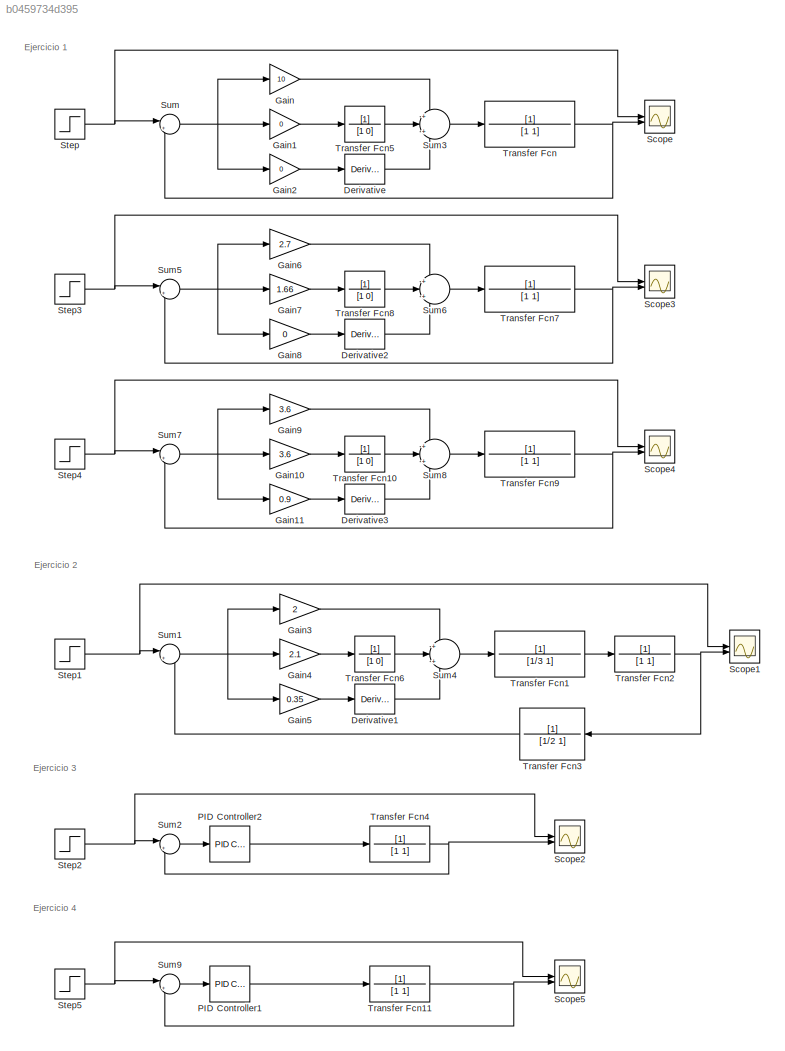
MODEL slx_b0459734d395
KIND model
CONFIG AbsTol = auto
CONFIG EnableMultiTasking = off
CONFIG FixedStep = auto
CONFIG MaxStep = auto
CONFIG MinStep = auto
CONFIG RelTol = 1e-3
CONFIG SampleTimeConstraint = Unconstrained
CONFIG SolverName = VariableStepAuto
CONFIG StartTime = 0.0
CONFIG StopTime = 10
BLOCK [Derivative] Derivative
BLOCK [Derivative] Derivative1
BLOCK [Derivative] Derivative2
BLOCK [Derivative] Derivative3
BLOCK [Gain] Gain
  Gain = 10
BLOCK [Gain] Gain1
  Gain = 0
BLOCK [Gain] Gain10
  Gain = 3.6
BLOCK [Gain] Gain11
  Gain = 0.9
BLOCK [Gain] Gain2
  Gain = 0
BLOCK [Gain] Gain3
  Gain = 2
BLOCK [Gain] Gain4
  Gain = 2.1
BLOCK [Gain] Gain5
  Gain = 0.35
BLOCK [Gain] Gain6
  Gain = 2.7
BLOCK [Gain] Gain7
  Gain = 1.66
BLOCK [Gain] Gain8
  Gain = 0
BLOCK [Gain] Gain9
  Gain = 3.6
BLOCK [Reference] PID Controller1  REF=slpidlib/PID Controller
  LibrarySourceBlock = simulink/Continuous/PID Controller
  SourceBlock = slpidlib/PID Controller
  SourceType = PID 1dof
BLOCK [Reference] PID Controller2  REF=slpidlib/PID Controller
  LibrarySourceBlock = simulink/Continuous/PID Controller
  SourceBlock = slpidlib/PID Controller
  SourceType = PID 1dof
BLOCK [Scope] Scope
  Floating = off
  NumInputPorts = 2
  ScopeSpecificationString = Simulink.scopes.TimeScopeBlockCfg('CurrentConfiguration', extmgr.ConfigurationSet(extmgr.Configuration('Core','General UI',true),extmgr.Configuration('Core','Source UI',true),extmgr.Configuration('Sources','WiredSimulink',true),extmgr.Configuration('Visuals','Time Domain',true,'SerializedDisplays',{struct('MinYLimReal','-0.15565','MaxYLimReal','1.40089','YLabelReal','','MinYLimMag','0.00000','MaxY...<+1461ch>
BLOCK [Scope] Scope1
  Floating = off
  NumInputPorts = 2
  ScopeSpecificationString = Simulink.scopes.TimeScopeBlockCfg('CurrentConfiguration', extmgr.ConfigurationSet(extmgr.Configuration('Core','General UI',true),extmgr.Configuration('Core','Source UI',true),extmgr.Configuration('Sources','WiredSimulink',true,'DataLoggingVariableName','ScopeData1'),extmgr.Configuration('Visuals','Time Domain',true,'SerializedDisplays',{struct('MinYLimReal','-0.18835','MaxYLimReal','1.69515','YLab...<+1504ch>
BLOCK [Scope] Scope2
  Floating = off
  NumInputPorts = 2
  ScopeSpecificationString = Simulink.scopes.TimeScopeBlockCfg('CurrentConfiguration', extmgr.ConfigurationSet(extmgr.Configuration('Core','General UI',true),extmgr.Configuration('Core','Source UI',true),extmgr.Configuration('Sources','WiredSimulink',true,'DataLoggingVariableName','ScopeData1'),extmgr.Configuration('Visuals','Time Domain',true,'SerializedDisplays',{struct('MinYLimReal','-0.12567','MaxYLimReal','1.13099','YLab...<+1500ch>
BLOCK [Scope] Scope3
  Floating = off
  NumInputPorts = 2
  ScopeSpecificationString = Simulink.scopes.TimeScopeBlockCfg('CurrentConfiguration', extmgr.ConfigurationSet(extmgr.Configuration('Core','General UI',true),extmgr.Configuration('Core','Source UI',true),extmgr.Configuration('Sources','WiredSimulink',true,'DataLoggingVariableName','ScopeData1'),extmgr.Configuration('Visuals','Time Domain',true,'SerializedDisplays',{struct('MinYLimReal','-0.14921','MaxYLimReal','1.34287','YLab...<+1502ch>
BLOCK [Scope] Scope4
  Floating = off
  NumInputPorts = 2
  ScopeSpecificationString = Simulink.scopes.TimeScopeBlockCfg('CurrentConfiguration', extmgr.ConfigurationSet(extmgr.Configuration('Core','General UI',true),extmgr.Configuration('Core','Source UI',true),extmgr.Configuration('Sources','WiredSimulink',true,'DataLoggingVariableName','ScopeData2'),extmgr.Configuration('Visuals','Time Domain',true,'SerializedDisplays',{struct('MinYLimReal','-0.16246','MaxYLimReal','1.46218','YLab...<+1500ch>
BLOCK [Scope] Scope5
  Floating = off
  NumInputPorts = 2
  ScopeSpecificationString = Simulink.scopes.TimeScopeBlockCfg('CurrentConfiguration', extmgr.ConfigurationSet(extmgr.Configuration('Core','General UI',true),extmgr.Configuration('Core','Source UI',true),extmgr.Configuration('Sources','WiredSimulink',true,'DataLoggingVariableName','ScopeData3'),extmgr.Configuration('Visuals','Time Domain',true,'SerializedDisplays',{struct('MinYLimReal','-0.12567','MaxYLimReal','1.13099','YLab...<+1500ch>
BLOCK [Step] Step
  SampleTime = 0
BLOCK [Step] Step1
  SampleTime = 0
BLOCK [Step] Step2
  SampleTime = 0
BLOCK [Step] Step3
  SampleTime = 0
BLOCK [Step] Step4
  SampleTime = 0
BLOCK [Step] Step5
  SampleTime = 0
BLOCK [Sum] Sum
  Inputs = |+-
BLOCK [Sum] Sum1
  Inputs = |+-
BLOCK [Sum] Sum2
  Inputs = |+-
BLOCK [Sum] Sum3
  Inputs = +|+|+
BLOCK [Sum] Sum4
  Inputs = +|+|+
BLOCK [Sum] Sum5
  Inputs = |+-
BLOCK [Sum] Sum6
  Inputs = +|+|+
BLOCK [Sum] Sum7
  Inputs = |+-
BLOCK [Sum] Sum8
  Inputs = +|+|+
BLOCK [Sum] Sum9
  Inputs = |+-
BLOCK [TransferFcn] Transfer Fcn
BLOCK [TransferFcn] Transfer Fcn1
  Denominator = [1/3 1]
BLOCK [TransferFcn] Transfer Fcn10
  Denominator = [1 0]
BLOCK [TransferFcn] Transfer Fcn11
  Denominator = [1 1]
BLOCK [TransferFcn] Transfer Fcn2
  Denominator = [1 1]
BLOCK [TransferFcn] Transfer Fcn3
  Denominator = [1/2 1]
BLOCK [TransferFcn] Transfer Fcn4
  Denominator = [1 1]
BLOCK [TransferFcn] Transfer Fcn5
  Denominator = [1 0]
BLOCK [TransferFcn] Transfer Fcn6
  Denominator = [1 0]
BLOCK [TransferFcn] Transfer Fcn7
BLOCK [TransferFcn] Transfer Fcn8
  Denominator = [1 0]
BLOCK [TransferFcn] Transfer Fcn9
ANNOTATION (root): Ejercicio 1
ANNOTATION (root): Ejercicio 2
ANNOTATION (root): Ejercicio 3
ANNOTATION (root): Ejercicio 4
LINE Derivative1:1 -> Sum4:3
LINE Derivative2:1 -> Sum6:3
LINE Derivative3:1 -> Sum8:3
LINE Derivative:1 -> Sum3:3
LINE Gain10:1 -> Transfer Fcn10:1
LINE Gain11:1 -> Derivative3:1
LINE Gain1:1 -> Transfer Fcn5:1
LINE Gain2:1 -> Derivative:1
LINE Gain3:1 -> Sum4:1
LINE Gain4:1 -> Transfer Fcn6:1
LINE Gain5:1 -> Derivative1:1
LINE Gain6:1 -> Sum6:1
LINE Gain7:1 -> Transfer Fcn8:1
LINE Gain8:1 -> Derivative2:1
LINE Gain9:1 -> Sum8:1
LINE Gain:1 -> Sum3:1
LINE PID Controller1:1 -> Transfer Fcn11:1
LINE PID Controller2:1 -> Transfer Fcn4:1
NET Step1:1 -> Scope1:1, Sum1:1
NET Step2:1 -> Scope2:1, Sum2:1
NET Step3:1 -> Scope3:1, Sum5:1
NET Step4:1 -> Scope4:1, Sum7:1
NET Step5:1 -> Scope5:1, Sum9:1
NET Step:1 -> Scope:1, Sum:1
NET Sum1:1 -> Gain3:1, Gain4:1, Gain5:1
LINE Sum2:1 -> PID Controller2:1
LINE Sum3:1 -> Transfer Fcn:1
LINE Sum4:1 -> Transfer Fcn1:1
NET Sum5:1 -> Gain6:1, Gain7:1, Gain8:1
LINE Sum6:1 -> Transfer Fcn7:1
NET Sum7:1 -> Gain10:1, Gain11:1, Gain9:1
LINE Sum8:1 -> Transfer Fcn9:1
LINE Sum9:1 -> PID Controller1:1
NET Sum:1 -> Gain1:1, Gain2:1, Gain:1
LINE Transfer Fcn10:1 -> Sum8:2
NET Transfer Fcn11:1 -> Scope5:2, Sum9:2
LINE Transfer Fcn1:1 -> Transfer Fcn2:1
NET Transfer Fcn2:1 -> Scope1:2, Transfer Fcn3:1
LINE Transfer Fcn3:1 -> Sum1:2
NET Transfer Fcn4:1 -> Scope2:2, Sum2:2
LINE Transfer Fcn5:1 -> Sum3:2
LINE Transfer Fcn6:1 -> Sum4:2
NET Transfer Fcn7:1 -> Scope3:2, Sum5:2
LINE Transfer Fcn8:1 -> Sum6:2
NET Transfer Fcn9:1 -> Scope4:2, Sum7:2
NET Transfer Fcn:1 -> Scope:2, Sum:2
note: NET lines group one-source signal fan-out (src -> all destinations, sorted); 1:1 wires keep LINE
